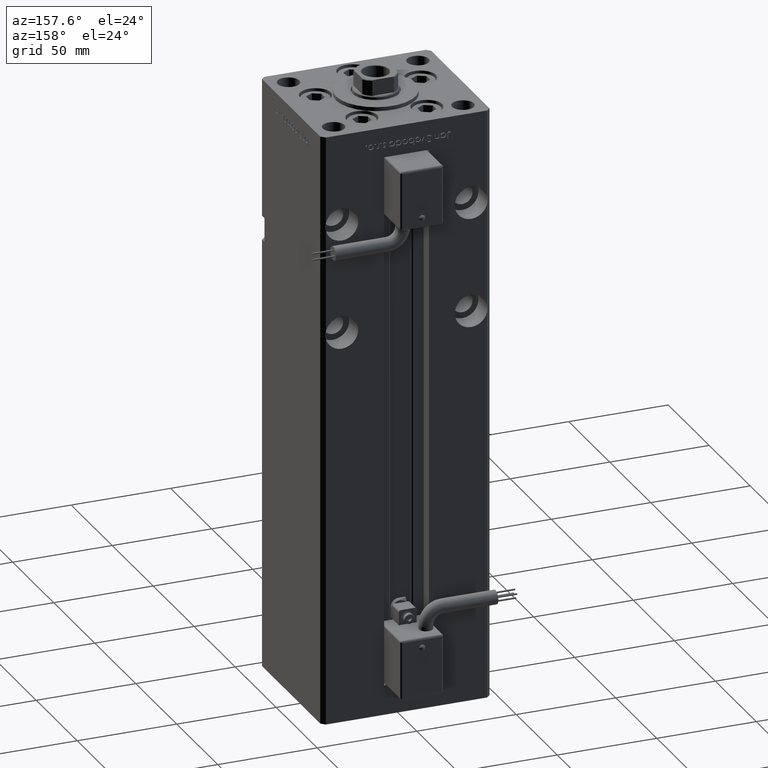
[diagram: clean part render]
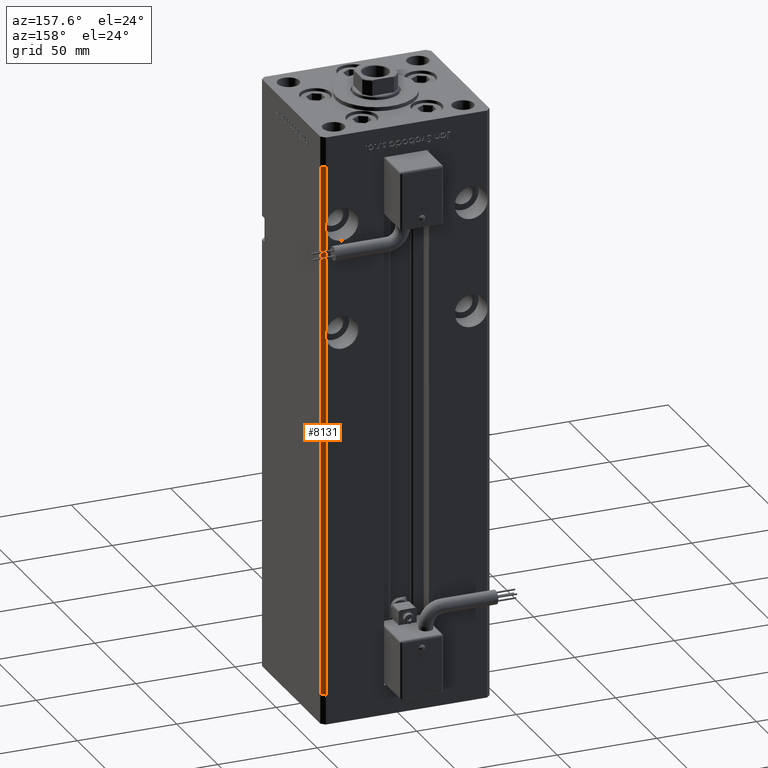
[diagram: same view with one face highlighted and labeled with its STEP entity id]
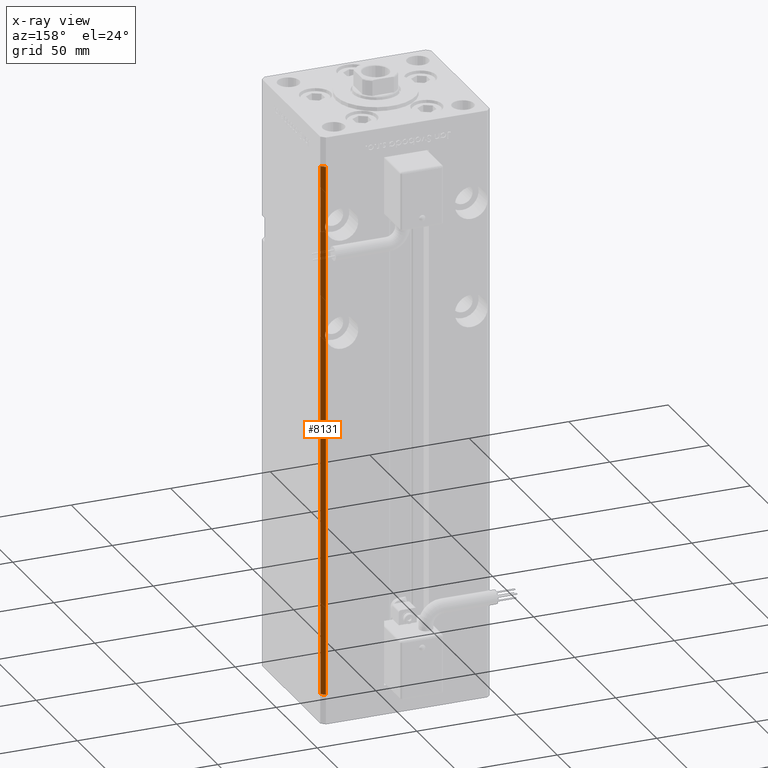
[diagram: x-ray of the same camera — body ghosted, the highlighted face saturated]
A machine part, auxiliary view. The second image highlights one B-rep face of the part: STEP entity #8131.
The next image is the same camera in x-ray: the body ghosted, the highlighted face saturated — about 0% of this face is hidden behind the body in this view.
In plain terms, the highlighted planar face has unit normal (0.7071, 0.7071, 0).
Its self-contained STEP definition (entity closure, byte-faithful):
#981 = LINE ( 'NONE', #26542, #25933 ) ;
#2215 = CARTESIAN_POINT ( 'NONE',  ( 40.50000000000000711, 37.50000000000000000, 235.9844355629253698 ) ) ;
#3338 = DIRECTION ( 'NONE',  ( -0.000000000000000000, -0.000000000000000000, -1.000000000000000000 ) ) ;
#3616 = VERTEX_POINT ( 'NONE', #44205 ) ;
#4586 = CARTESIAN_POINT ( 'NONE',  ( 40.50000000000000711, 37.50000000000000000, 268.5000000000000000 ) ) ;
#6391 = CARTESIAN_POINT ( 'NONE',  ( 40.83505154639175316, 37.16494845360825394, 183.6857074889016985 ) ) ;
#8131 = ADVANCED_FACE ( 'NONE', ( #12852 ), #38995, .T. ) ;
#10003 = ORIENTED_EDGE ( 'NONE', *, *, #30586, .F. ) ;
#10786 = VERTEX_POINT ( 'NONE', #44884 ) ;
#11023 = EDGE_CURVE ( 'NONE', #42487, #31402, #47753, .T. ) ;
#12852 = FACE_OUTER_BOUND ( 'NONE', #40084, .T. ) ;
#13067 = CARTESIAN_POINT ( 'NONE',  ( 40.50000000000000711, 37.50000000000000000, 240.0155644370746586 ) ) ;
#16797 = CARTESIAN_POINT ( 'NONE',  ( 42.50000000000001421, 35.50000000000000711, 268.5000000000000000 ) ) ;
#17256 = ORIENTED_EDGE ( 'NONE', *, *, #19186, .F. ) ;
#17973 = LINE ( 'NONE', #35296, #22851 ) ;
#18419 = CARTESIAN_POINT ( 'NONE',  ( 40.50000000000000711, 37.50000000000000000, 185.0155644370746302 ) ) ;
#19186 = EDGE_CURVE ( 'NONE', #31402, #52067, #17973, .T. ) ;
#22582 = CARTESIAN_POINT ( 'NONE',  ( 40.83505154639176027, 37.16494845360823973, 237.3142925110983299 ) ) ;
#22851 = VECTOR ( 'NONE', #52636, 1000.000000000000000 ) ;
#23717 = CARTESIAN_POINT ( 'NONE',  ( 40.83505154639175316, 37.16494845360825394, 182.3142925110983583 ) ) ;
#23723 = DIRECTION ( 'NONE',  ( 0.7071067811865500152, -0.7071067811865451302, 0.000000000000000000 ) ) ;
#24010 = LINE ( 'NONE', #28255, #46636 ) ;
#24416 = VERTEX_POINT ( 'NONE', #38597 ) ;
#24498 = ORIENTED_EDGE ( 'NONE', *, *, #52490, .F. ) ;
#25334 = EDGE_CURVE ( 'NONE', #40103, #50970, #24010, .T. ) ;
#25933 = VECTOR ( 'NONE', #43906, 1000.000000000000000 ) ;
#26542 = CARTESIAN_POINT ( 'NONE',  ( 42.50000000000001421, 35.50000000000000711, 268.5000000000000000 ) ) ;
#27305 = EDGE_CURVE ( 'NONE', #40103, #42487, #52910, .T. ) ;
#28255 = CARTESIAN_POINT ( 'NONE',  ( 40.50000000000000711, 37.50000000000000000, 268.5000000000000000 ) ) ;
#29179 = EDGE_CURVE ( 'NONE', #50970, #24416, #981, .T. ) ;
#29603 = CARTESIAN_POINT ( 'NONE',  ( 40.50000000000000711, 37.50000000000000000, 0.000000000000000000 ) ) ;
#30586 = EDGE_CURVE ( 'NONE', #3616, #10786, #51635, .T. ) ;
#31402 = VERTEX_POINT ( 'NONE', #2215 ) ;
#31936 = ORIENTED_EDGE ( 'NONE', *, *, #29179, .T. ) ;
#31966 = VECTOR ( 'NONE', #42688, 1000.000000000000114 ) ;
#32621 = CARTESIAN_POINT ( 'NONE',  ( 40.50000000000000711, 37.50000000000000000, 268.5000000000000000 ) ) ;
#35296 = CARTESIAN_POINT ( 'NONE',  ( 40.50000000000000711, 37.50000000000000000, 268.5000000000000000 ) ) ;
#36212 = CARTESIAN_POINT ( 'NONE',  ( 40.50000000000000711, 37.50000000000000000, 235.9844355629253698 ) ) ;
#36394 = CARTESIAN_POINT ( 'NONE',  ( 40.50000000000000711, 37.50000000000000000, 268.5000000000000000 ) ) ;
#37373 = ORIENTED_EDGE ( 'NONE', *, *, #27305, .F. ) ;
#38597 = CARTESIAN_POINT ( 'NONE',  ( 42.50000000000001421, 35.50000000000000711, 0.000000000000000000 ) ) ;
#38995 = PLANE ( 'NONE',  #42208 ) ;
#40084 = EDGE_LOOP ( 'NONE', ( #24498, #17256, #44798, #37373, #46157, #31936, #46514, #10003 ) ) ;
#40103 = VERTEX_POINT ( 'NONE', #32621 ) ;
#40512 = VECTOR ( 'NONE', #3338, 1000.000000000000000 ) ;
#41066 = CARTESIAN_POINT ( 'NONE',  ( 40.50000000000000711, 37.50000000000000000, 180.9844355629254267 ) ) ;
#42208 = AXIS2_PLACEMENT_3D ( 'NONE', #4586, #43270, #48348 ) ;
#42487 = VERTEX_POINT ( 'NONE', #13067 ) ;
#42688 = DIRECTION ( 'NONE',  ( 0.7071067811865500152, -0.7071067811865451302, 0.000000000000000000 ) ) ;
#43270 = DIRECTION ( 'NONE',  ( 0.7071067811865451302, 0.7071067811865500152, -0.000000000000000000 ) ) ;
#43906 = DIRECTION ( 'NONE',  ( -0.000000000000000000, -0.000000000000000000, -1.000000000000000000 ) ) ;
#44205 = CARTESIAN_POINT ( 'NONE',  ( 40.50000000000000711, 37.50000000000000000, 180.9844355629254267 ) ) ;
#44798 = ORIENTED_EDGE ( 'NONE', *, *, #11023, .F. ) ;
#44884 = CARTESIAN_POINT ( 'NONE',  ( 40.50000000000000711, 37.50000000000000000, 0.000000000000000000 ) ) ;
#46124 = EDGE_CURVE ( 'NONE', #10786, #24416, #50925, .T. ) ;
#46157 = ORIENTED_EDGE ( 'NONE', *, *, #25334, .T. ) ;
#46514 = ORIENTED_EDGE ( 'NONE', *, *, #46124, .F. ) ;
#46636 = VECTOR ( 'NONE', #23723, 1000.000000000000114 ) ;
#47753 =( BOUNDED_CURVE ( )  B_SPLINE_CURVE ( 3, ( #48993, #48719, #22582, #36212 ),
 .UNSPECIFIED., .F., .T. ) 
 B_SPLINE_CURVE_WITH_KNOTS ( ( 4, 4 ),
 ( 2.894783720120218895, 3.388401587059367337 ),
 .UNSPECIFIED. ) 
 CURVE ( )  GEOMETRIC_REPRESENTATION_ITEM ( )  RATIONAL_B_SPLINE_CURVE ( ( 1.000000000000000000, 0.9797979797979794458, 0.9797979797979794458, 1.000000000000000000 ) ) 
 REPRESENTATION_ITEM ( '' )  );
#48348 = DIRECTION ( 'NONE',  ( -0.7071067811865500152, 0.7071067811865451302, 0.000000000000000000 ) ) ;
#48719 = CARTESIAN_POINT ( 'NONE',  ( 40.83505154639176027, 37.16494845360823973, 238.6857074889016985 ) ) ;
#48993 = CARTESIAN_POINT ( 'NONE',  ( 40.50000000000000711, 37.50000000000000000, 240.0155644370746586 ) ) ;
#50925 = LINE ( 'NONE', #29603, #31966 ) ;
#50970 = VERTEX_POINT ( 'NONE', #16797 ) ;
#51635 = LINE ( 'NONE', #55918, #40512 ) ;
#52067 = VERTEX_POINT ( 'NONE', #18419 ) ;
#52490 = EDGE_CURVE ( 'NONE', #52067, #3616, #53570, .T. ) ;
#52636 = DIRECTION ( 'NONE',  ( -0.000000000000000000, -0.000000000000000000, -1.000000000000000000 ) ) ;
#52910 = LINE ( 'NONE', #36394, #53090 ) ;
#53090 = VECTOR ( 'NONE', #53198, 1000.000000000000000 ) ;
#53198 = DIRECTION ( 'NONE',  ( -0.000000000000000000, -0.000000000000000000, -1.000000000000000000 ) ) ;
#53570 =( BOUNDED_CURVE ( )  B_SPLINE_CURVE ( 3, ( #53864, #6391, #23717, #41066 ),
 .UNSPECIFIED., .F., .F. ) 
 B_SPLINE_CURVE_WITH_KNOTS ( ( 4, 4 ),
 ( 2.894783720120225556, 3.388401587059360676 ),
 .UNSPECIFIED. ) 
 CURVE ( )  GEOMETRIC_REPRESENTATION_ITEM ( )  RATIONAL_B_SPLINE_CURVE ( ( 1.000000000000000000, 0.9797979797979806671, 0.9797979797979806671, 1.000000000000000000 ) ) 
 REPRESENTATION_ITEM ( '' )  );
#53864 = CARTESIAN_POINT ( 'NONE',  ( 40.50000000000000711, 37.50000000000000000, 185.0155644370746302 ) ) ;
#55918 = CARTESIAN_POINT ( 'NONE',  ( 40.50000000000000711, 37.50000000000000000, 268.5000000000000000 ) ) ;